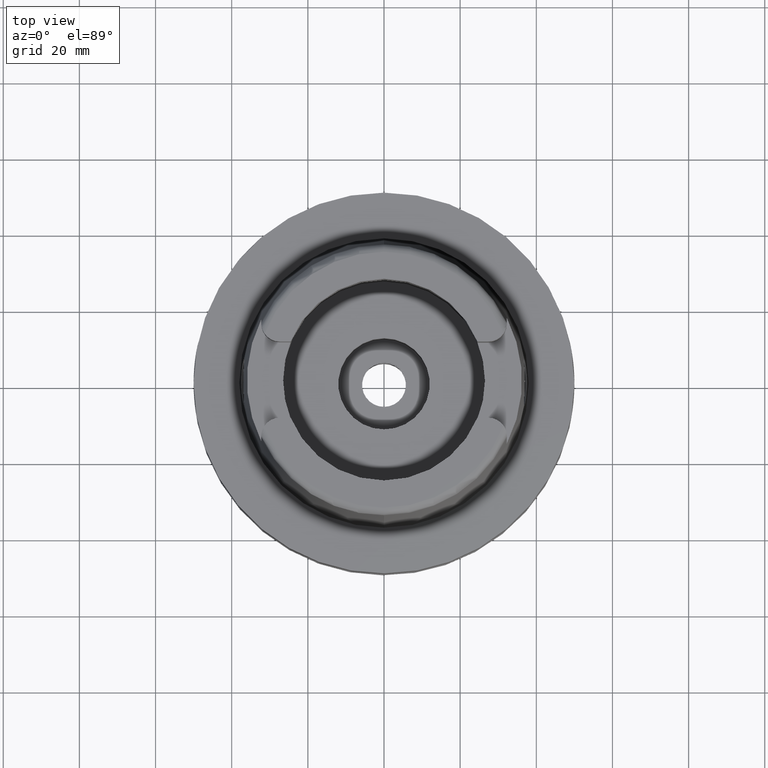
[diagram: clean part render]
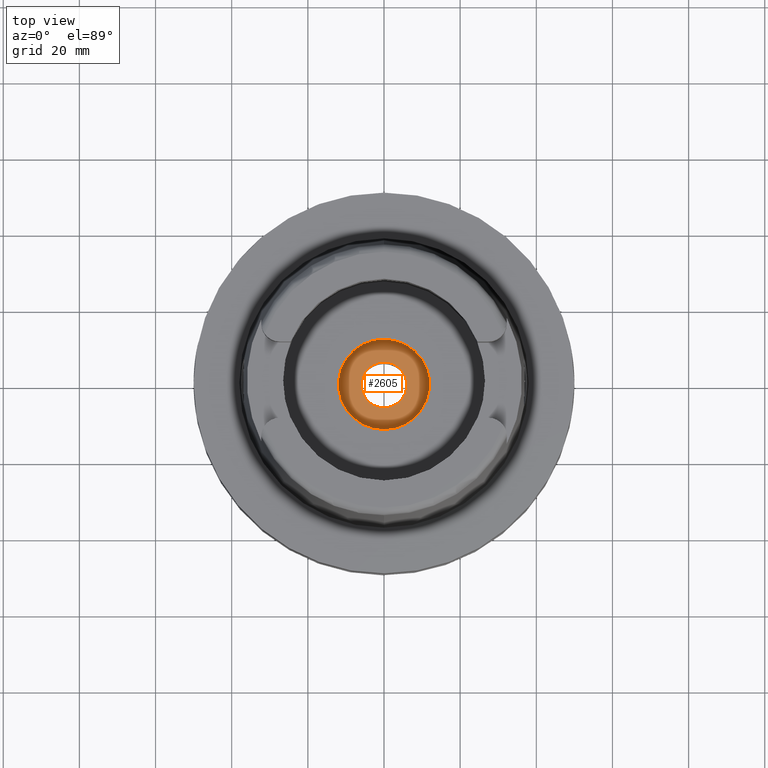
[diagram: same view with one face highlighted and labeled with its STEP entity id]
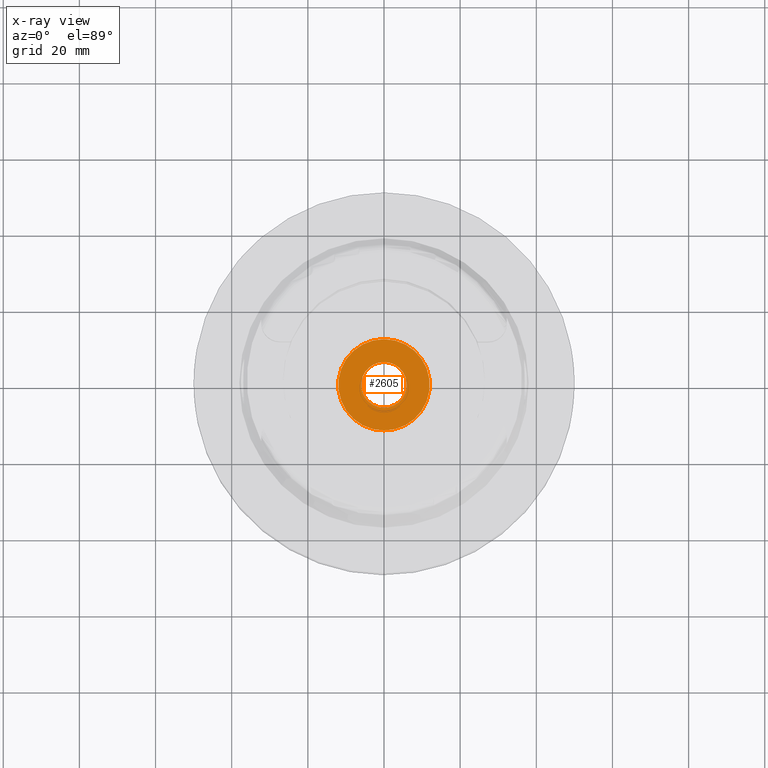
[diagram: x-ray of the same camera — body ghosted, the highlighted face saturated]
A machine part, top view. The second image highlights one B-rep face of the part: STEP entity #2605.
The next image is the same camera in x-ray: the body ghosted, the highlighted face saturated — about 0% of this face is hidden behind the body in this view.
In plain terms, the highlighted planar face has unit normal (0, 0, 1).
Its self-contained STEP definition (entity closure, byte-faithful):
#170 = ORIENTED_EDGE ( 'NONE', *, *, #5254, .F. ) ;
#304 = FACE_BOUND ( 'NONE', #2085, .T. ) ;
#484 = ORIENTED_EDGE ( 'NONE', *, *, #3969, .F. ) ;
#601 = CIRCLE ( 'NONE', #2042, 6.000000000000000000 ) ;
#623 = EDGE_LOOP ( 'NONE', ( #484, #170 ) ) ;
#735 = VERTEX_POINT ( 'NONE', #5584 ) ;
#777 = DIRECTION ( 'NONE',  ( 0.0000000000000000000, 0.0000000000000000000, 1.000000000000000000 ) ) ;
#819 = DIRECTION ( 'NONE',  ( 1.000000000000000000, 0.0000000000000000000, 0.0000000000000000000 ) ) ;
#876 = VERTEX_POINT ( 'NONE', #3909 ) ;
#1107 = CARTESIAN_POINT ( 'NONE',  ( 0.0000000000000000000, -12.00000000000000000, -28.44999999999999929 ) ) ;
#1178 = FACE_OUTER_BOUND ( 'NONE', #623, .T. ) ;
#1227 = CIRCLE ( 'NONE', #4101, 12.00000000000000000 ) ;
#1277 = EDGE_CURVE ( 'NONE', #876, #4955, #601, .T. ) ;
#1431 = CARTESIAN_POINT ( 'NONE',  ( 0.0000000000000000000, 0.0000000000000000000, -28.44999999999999929 ) ) ;
#1708 = PLANE ( 'NONE',  #2322 ) ;
#1831 = DIRECTION ( 'NONE',  ( 0.0000000000000000000, 0.0000000000000000000, -1.000000000000000000 ) ) ;
#1832 = DIRECTION ( 'NONE',  ( 0.0000000000000000000, 1.000000000000000000, 0.0000000000000000000 ) ) ;
#1860 = EDGE_CURVE ( 'NONE', #4955, #876, #4111, .T. ) ;
#2042 = AXIS2_PLACEMENT_3D ( 'NONE', #4741, #777, #3347 ) ;
#2085 = EDGE_LOOP ( 'NONE', ( #2690, #5540 ) ) ;
#2087 = DIRECTION ( 'NONE',  ( 0.0000000000000000000, 0.0000000000000000000, 1.000000000000000000 ) ) ;
#2322 = AXIS2_PLACEMENT_3D ( 'NONE', #3331, #2087, #819 ) ;
#2578 = AXIS2_PLACEMENT_3D ( 'NONE', #1431, #3088, #1832 ) ;
#2605 = ADVANCED_FACE ( 'NONE', ( #1178, #304 ), #1708, .T. ) ;
#2690 = ORIENTED_EDGE ( 'NONE', *, *, #1860, .F. ) ;
#2832 = DIRECTION ( 'NONE',  ( 0.0000000000000000000, 1.000000000000000000, 0.0000000000000000000 ) ) ;
#2862 = CARTESIAN_POINT ( 'NONE',  ( 0.0000000000000000000, 0.0000000000000000000, -28.44999999999999929 ) ) ;
#2989 = VERTEX_POINT ( 'NONE', #1107 ) ;
#3088 = DIRECTION ( 'NONE',  ( 0.0000000000000000000, 0.0000000000000000000, 1.000000000000000000 ) ) ;
#3331 = CARTESIAN_POINT ( 'NONE',  ( 0.0000000000000000000, 0.0000000000000000000, -28.44999999999999929 ) ) ;
#3347 = DIRECTION ( 'NONE',  ( 0.0000000000000000000, -1.000000000000000000, 0.0000000000000000000 ) ) ;
#3675 = DIRECTION ( 'NONE',  ( 0.0000000000000000000, 0.0000000000000000000, -1.000000000000000000 ) ) ;
#3909 = CARTESIAN_POINT ( 'NONE',  ( 0.0000000000000000000, -6.000000000000000000, -28.44999999999999929 ) ) ;
#3969 = EDGE_CURVE ( 'NONE', #735, #2989, #4087, .T. ) ;
#4049 = CARTESIAN_POINT ( 'NONE',  ( 0.0000000000000000000, 0.0000000000000000000, -28.44999999999999929 ) ) ;
#4087 = CIRCLE ( 'NONE', #5096, 12.00000000000000000 ) ;
#4101 = AXIS2_PLACEMENT_3D ( 'NONE', #4049, #1831, #5267 ) ;
#4111 = CIRCLE ( 'NONE', #2578, 6.000000000000000000 ) ;
#4708 = CARTESIAN_POINT ( 'NONE',  ( 0.0000000000000000000, 6.000000000000000000, -28.44999999999999929 ) ) ;
#4741 = CARTESIAN_POINT ( 'NONE',  ( 0.0000000000000000000, 0.0000000000000000000, -28.44999999999999929 ) ) ;
#4955 = VERTEX_POINT ( 'NONE', #4708 ) ;
#5096 = AXIS2_PLACEMENT_3D ( 'NONE', #2862, #3675, #2832 ) ;
#5254 = EDGE_CURVE ( 'NONE', #2989, #735, #1227, .T. ) ;
#5267 = DIRECTION ( 'NONE',  ( 0.0000000000000000000, -1.000000000000000000, 0.0000000000000000000 ) ) ;
#5540 = ORIENTED_EDGE ( 'NONE', *, *, #1277, .F. ) ;
#5584 = CARTESIAN_POINT ( 'NONE',  ( 0.0000000000000000000, 12.00000000000000000, -28.44999999999999929 ) ) ;